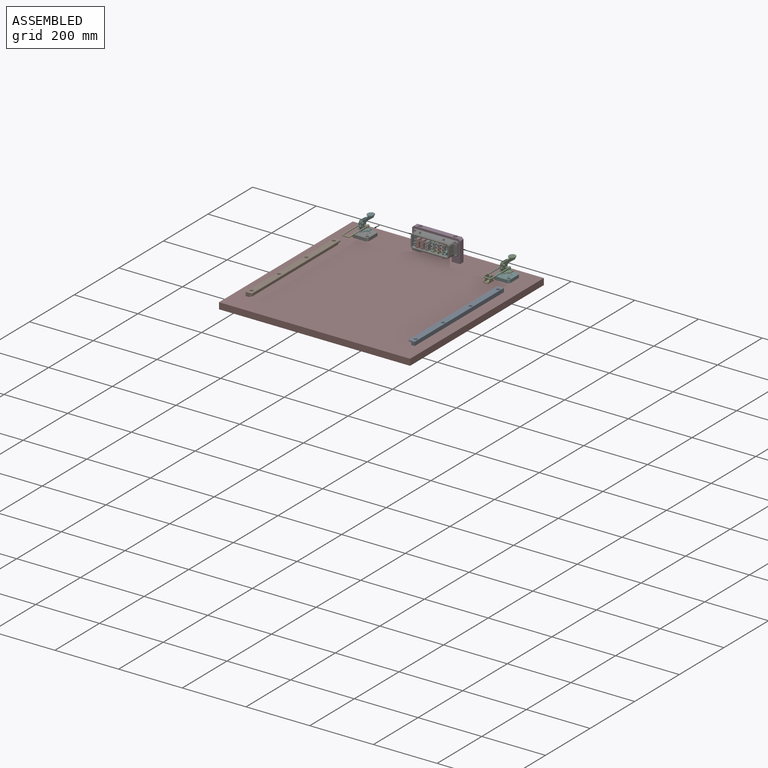
[diagram: assembled view]
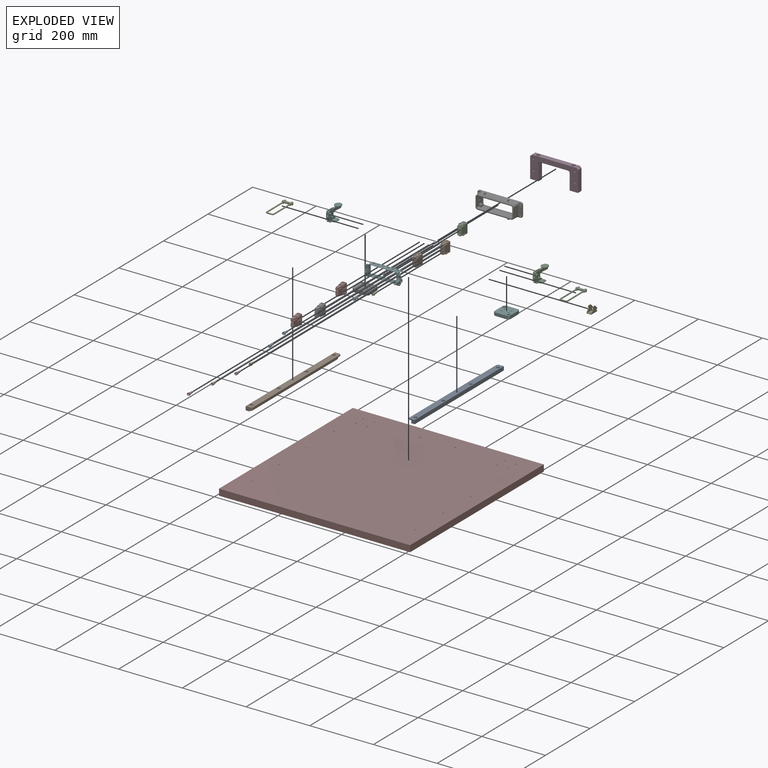
[diagram: exploded view]
GUIDED TOUR — MATED ASSEMBLY (Onshape document d4c35ae18ba1addbceedd93a, AutoMate assembly d4c35ae18ba1addbceedd93a_c596f7dea97372842537b437_43eada3d52e0381e4ba08f61_default)

This assembly has 27 components, labeled P0..P26 below (a component is one placed occurrence of a part; the same part can appear more than once), held together by 24 mates. A mate is a constraint between two components; its type names the relative motion it leaves free:
  FASTENED — locks the two components together rigidly (no relative motion),
  REVOLUTE — leaves rotation about the listed axis free (a hinge).
Axis/direction vectors are unit vectors and 'through' points are millimeter coordinates, both in the assembly's world frame.

MATES
  1. FASTENED "Fastened 5": P21 <-> P6, direction (0.000, 1.000, 0.000) through (-226.00, 317.46, 228.51) mm
  2. FASTENED "Fastened 7": P5 <-> P7, direction (0.000, 0.000, -1.000) through (-38.00, 317.81, 200.51) mm
  3. FASTENED "Fastened 14": P1 <-> P9, direction (0.000, 1.000, 0.000) through (-255.84, 311.16, 241.67) mm
  4. FASTENED "Fastened 4": P6 <-> P19, direction (0.000, 1.000, 0.000) through (-213.00, 334.81, 226.01) mm
  5. FASTENED "Fastened 23": P21 <-> P15, direction (0.000, -1.000, 0.000) through (-314.85, 332.76, 225.54) mm
  6. FASTENED "Fastened 12": P10 <-> P17, direction (0.000, 1.000, 0.000) through (-240.94, 311.16, 232.93) mm
  7. FASTENED "Fastened 6": P14 <-> P7, direction (0.000, 0.000, -1.000) through (-482.00, 317.81, 200.51) mm
  8. FASTENED "Fastened 13": P20 <-> P9, direction (0.000, 1.000, 0.000) through (-255.84, 311.16, 232.17) mm
  9. FASTENED "Fastened 2": P16 <-> P7, direction (0.000, 0.000, 1.000) through (-20.25, 244.81, 200.51) mm
  10. FASTENED "Fastened 24": P18 <-> P4, direction (-1.000, 0.000, 0.000) through (-49.20, 246.78, 234.51) mm
  11. FASTENED "Fastened 22": P21 <-> P23, direction (0.000, -1.000, 0.000) through (-300.15, 332.76, 225.54) mm
  12. FASTENED "Fastened 20": P21 <-> P26, direction (0.000, -1.000, 0.000) through (-270.54, 332.76, 225.54) mm
  13. FASTENED "Fastened 10": P0 <-> P17, direction (0.000, 1.000, 0.000) through (-240.94, 311.16, 251.93) mm
  14. FASTENED "Fastened 19": P21 <-> P9, direction (0.000, -1.000, 0.000) through (-255.84, 332.76, 225.54) mm
  15. FASTENED "Fastened 17": P11 <-> P26, direction (0.000, 1.000, 0.000) through (-270.54, 311.16, 241.67) mm
  16. FASTENED "Fastened 1": P25 <-> P7, direction (0.000, 0.000, 1.000) through (-535.75, 244.81, 200.51) mm
  17. FASTENED "Fastened 18": P21 <-> P17, direction (0.000, -1.000, 0.000) through (-240.94, 332.76, 226.31) mm
  18. FASTENED "Fastened 15": P24 <-> P9, direction (0.000, 1.000, 0.000) through (-255.84, 311.16, 251.17) mm
  19. FASTENED "Fastened 21": P21 <-> P22, direction (0.000, -1.000, 0.000) through (-285.45, 332.76, 225.54) mm
  20. FASTENED "Fastened 11": P3 <-> P17, direction (0.000, 1.000, 0.000) through (-240.94, 311.16, 242.43) mm
  21. FASTENED "Fastened 3": P19 <-> P7, direction (0.000, 0.000, -1.000) through (-333.00, 342.81, 200.51) mm
  22. REVOLUTE "Revolute 2": P18 <-> P2, axis (1.000, 0.000, 0.000) through (-56.20, 327.28, 234.51) mm
  23. FASTENED "Fastened 16": P8 <-> P26, direction (0.000, 1.000, 0.000) through (-270.54, 311.16, 251.17) mm
  24. REVOLUTE "Revolute 1": P12 <-> P13, axis (-1.000, 0.000, 0.000) through (-516.10, 327.28, 234.51) mm

ASSEMBLY ORDER
  1. P17 — the base component [order verified]
  2. P9 [order verified]
  3. P26 [order verified]
  4. P21 [order verified]
  5. P10 [order verified]
  6. P6 [order verified]
  7. P0 [order verified]
  8. P15 [order verified]
  9. P22 [order verified]
  10. P23 [order verified]
  11. P2 [order verified]
  12. P18 [order verified]
  13. P8 [order verified]
  14. P24 [order verified]
  15. P20 [order verified]
  16. P13 [order verified]
  17. P12 [order verified]
  18. P3 [order verified]
  19. P1 [order verified]
  20. P11 [order verified]
  21. P19 [order verified]
  22. P4 [order verified]
  23. P14 [order verified]
  24. P5 [order verified]
  25. P16 [order verified]
  26. P25 [order verified]
  27. P7 [order verified]
(P0, P1, P3, P8, P10, P18, P20, P21, P24, P26 verified with a relaxed clearance tolerance: the source model stores slight part interference there.)
Order-tag legend:
  [order verified] — this step's position reverses a verified removal order: the component was checked to insert without passing through the ones already placed.

Of the 27 components, 6 carry the full construction recipe — the FeatureScript program that regenerates the part's solid from scratch; the rest are supplied as boundary geometry only.
Because this assembly has more than 12 components, the tour below covers the 12 most significant ones individually (every recipe-attached component first, then the largest by part volume), in assembly order; the remaining 15 are summarized together in a grouped section at the end.
Each toured component is shown spotlighted twice — in the assembled view, then in the exploded view, where a leader line traces a displaced component back to its assembled socket (saturated green if recipe-attached, orange if geometry-only; every other component desaturated gray) — followed by its recipe or geometry summary and the mates that hold it.
NOTE — document 2 of 2 of this assembly tour. The two overview renders and the header above are repeated from document 1; the component sections below continue where the previous document stopped.
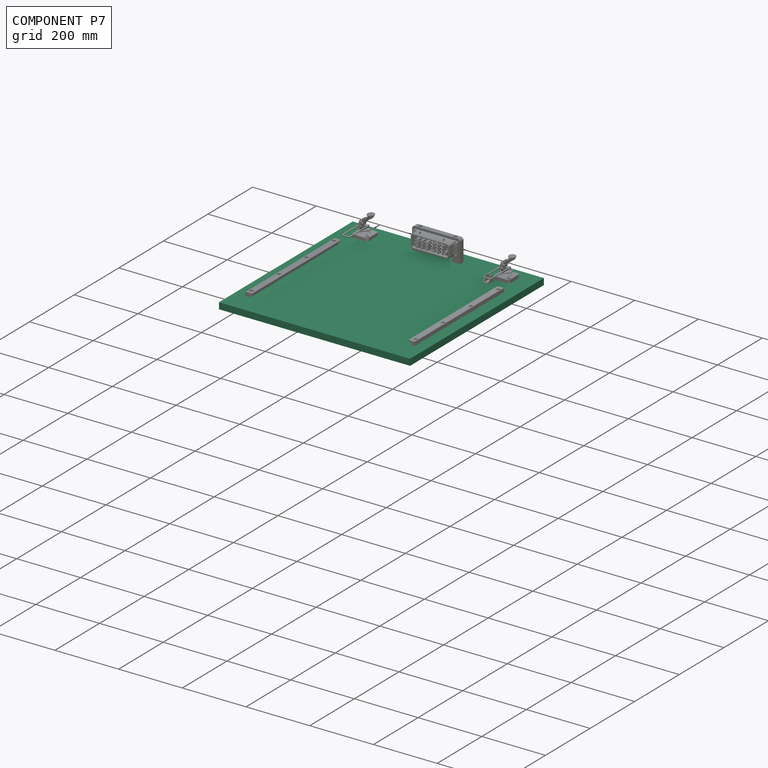
[diagram: component P7 — assembled]
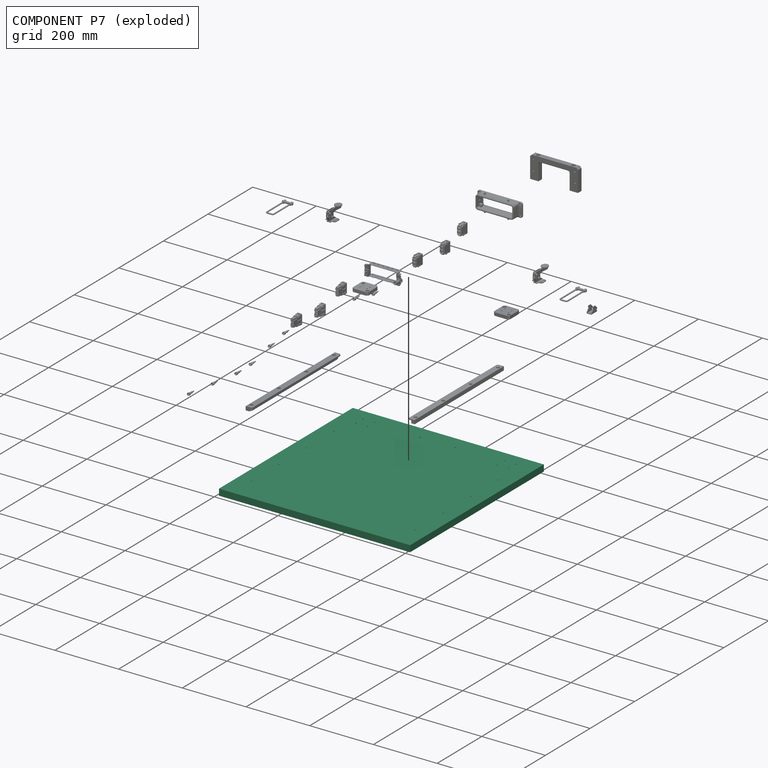
[diagram: component P7 — exploded]
COMPONENT P7 — recipe-attached (CADFS 00426690, mesh-verified: the recipe's output STEP matches this component's geometry to below the mesh-comparison resolution (tessellation chordal tolerance ~1.27 mm)).
Held by: FASTENED mate "Fastened 7" to P5; FASTENED mate "Fastened 6" to P14; FASTENED mate "Fastened 2" to P16; FASTENED mate "Fastened 1" to P25; FASTENED mate "Fastened 3" to P19.
Construction recipe (FeatureScript — the CAD program that rebuilds this solid; sketch coordinates are in the units given by the * unit suffixes, e.g. mm):

FeatureScript 1511;
import(path : "onshape/std/geometry.fs", version : "1511.0");
import(path : "onshape/std/common.fs", version : "1511.0");
const mm = millimeter;
const VERTEX = EntityType.VERTEX;
const EDGE = EntityType.EDGE;
const FACE = EntityType.FACE;
const BODY = EntityType.BODY;
function v(x, y){return vector(x, y);}
function OD(order){return orderDisambiguation(order);}
function OSD(set){return originalSetDisambiguation(set);}
function TD(topology){return topologyDisambiguation(topology);}
function TDD(query){return trueDependencyDisambiguation(query);}
function sQuery(a, b, c) {return sketchEntityQuery(a, b, c);}

annotation { "Feature Type Name" : "Feature", "Feature Type Description" : "" }
export const myFeature = defineFeature(function(context is Context, id is Id, definition is map)
    precondition{}
    {
        {
            var Q0;
            Q0=qCreatedBy(makeId("Top.planeOp"),FACE);
            var sketch = newSketch(context, id + "F0", { "sketchPlane" : qUnion([Q0])});
            skLineSegment(sketch, "E0.bottom", {"start": v(-722.9, 558) * mm, "end": v(-122.9, 558) * mm});
            skLineSegment(sketch, "E0.top", {"start": v(-722.9, -42) * mm, "end": v(-122.9, -42) * mm});
            skLineSegment(sketch, "E0.left", {"start": v(-722.9, 558) * mm, "end": v(-722.9, -42) * mm});
            skLineSegment(sketch, "E0.right", {"start": v(-122.9, 558) * mm, "end": v(-122.9, -42) * mm});
            skLineSegment(sketch, "E1.0", {"start": v(-422.9, 521) * mm, "end": v(-422.9, -42) * mm});
            skPoint(sketch, "E2", {"position": v(-477.9, 511) * mm});
            skPoint(sketch, "E3", {"position": v(-367.9, 511) * mm});
            skPoint(sketch, "E4", {"position": v(-680.64, 413) * mm});
            skPoint(sketch, "E5", {"position": v(-680.64, 289.7) * mm});
            skPoint(sketch, "E6", {"position": v(-680.64, 166.4) * mm});
            skPoint(sketch, "E7", {"position": v(-680.64, 43.1) * mm});
            skPoint(sketch, "E8", {"position": v(-165.14, 413) * mm});
            skPoint(sketch, "E9", {"position": v(-165.14, 289.7) * mm});
            skPoint(sketch, "E10", {"position": v(-165.14, 166.4) * mm});
            skPoint(sketch, "E11", {"position": v(-165.14, 43.1) * mm});
            skPoint(sketch, "E12", {"position": v(-662.9, 518) * mm});
            skPoint(sketch, "E13", {"position": v(-626.9, 518) * mm});
            skPoint(sketch, "E14", {"position": v(-626.9, 486) * mm});
            skPoint(sketch, "E15", {"position": v(-662.9, 486) * mm});
            skPoint(sketch, "E16", {"position": v(-218.9, 518) * mm});
            skPoint(sketch, "E17", {"position": v(-182.9, 518) * mm});
            skPoint(sketch, "E18", {"position": v(-182.9, 486) * mm});
            skPoint(sketch, "E19", {"position": v(-218.9, 486) * mm});
            skSolve(sketch);
        }
        {
            var Q0;
            {var subQ0=sQuery(id+"F0.wireOp",EDGE,"E0.left");Q0=makeQuery(id+"F0.imprint","IMPRINT",FACE,{"disambiguationData":[TD([[makeQuery(id+"F0.imprint","IMPRINT",EDGE,{"derivedFrom":subQ0}),1.0]])]});}
            var Q1;
            {var subQ0=sQuery(id+"F0.wireOp",EDGE,"E0.right");Q1=makeQuery(id+"F0.imprint","IMPRINT",FACE,{"disambiguationData":[TD([[makeQuery(id+"F0.imprint","IMPRINT",EDGE,{"derivedFrom":subQ0}),-1.0]])]});}
            extrude(context, id + "F1", {"entities" : qUnion([Q0, Q1]), "depth" : 20 * mm});
        }
        {
            var Q0;
            Q0=sQuery(id+"F0.wireOp",VERTEX,"E2");
            var Q1;
            Q1=sQuery(id+"F0.wireOp",VERTEX,"E3");
            var Q2;
            Q2=makeQuery(id+"F1.opExtrude","SWEPT_BODY",BODY,{"disambiguationData":[OSD([sQuery(id+"F0.wireOp",EDGE,"E0.bottom"),sQuery(id+"F0.wireOp",EDGE,"E0.top"),sQuery(id+"F0.wireOp",EDGE,"E0.left"),sQuery(id+"F0.wireOp",EDGE,"E0.right")])]});
            hole(context, id + "F2", {"style" : HoleStyle.SIMPLE, "endStyle" : HoleEndStyle.THROUGH, "oppositeDirection" : true, "standardTappedOrClearance" : lookupTablePath({ "standard" : "ISO", "engagement" : "75%", "pitch" : "1 mm", "size" : "M6", "type" : "Tapped" }), "standardBlindInLast" : lookupTablePath({ "standard" : "ISO", "engagement" : "75%", "pitch" : "1 mm", "size" : "M6", "type" : "Tapped" }), "holeDiameter" : 5 * mm, "showTappedDepth" : true, "isTappedThrough" : true, "tappedDepth" : 10 * mm, "tapClearance" : 3, "locations" : qUnion([Q0, Q1]), "scope" : qUnion([Q2]), "majorDiameter" : 6 * mm});
        }
        {
            var Q0;
            Q0=sQuery(id+"F0.wireOp",VERTEX,"E4");
            var Q1;
            Q1=sQuery(id+"F0.wireOp",VERTEX,"E5");
            var Q2;
            Q2=sQuery(id+"F0.wireOp",VERTEX,"E6");
            var Q3;
            Q3=sQuery(id+"F0.wireOp",VERTEX,"E7");
            var Q4;
            Q4=sQuery(id+"F0.wireOp",VERTEX,"E11");
            var Q5;
            Q5=sQuery(id+"F0.wireOp",VERTEX,"E10");
            var Q6;
            Q6=sQuery(id+"F0.wireOp",VERTEX,"E9");
            var Q7;
            Q7=sQuery(id+"F0.wireOp",VERTEX,"E8");
            var Q8;
            Q8=makeQuery(id+"F1.opExtrude","SWEPT_BODY",BODY,{"disambiguationData":[OSD([sQuery(id+"F0.wireOp",EDGE,"E0.bottom"),sQuery(id+"F0.wireOp",EDGE,"E0.top"),sQuery(id+"F0.wireOp",EDGE,"E0.left"),sQuery(id+"F0.wireOp",EDGE,"E0.right")])]});
            hole(context, id + "F3", {"style" : HoleStyle.SIMPLE, "endStyle" : HoleEndStyle.THROUGH, "oppositeDirection" : true, "standardTappedOrClearance" : lookupTablePath({ "standard" : "ISO", "engagement" : "75%", "pitch" : "0.8 mm", "size" : "M5", "type" : "Tapped" }), "standardBlindInLast" : lookupTablePath({ "standard" : "ISO", "engagement" : "75%", "pitch" : "0.8 mm", "size" : "M5", "type" : "Tapped" }), "holeDiameter" : 4.2 * mm, "showTappedDepth" : true, "isTappedThrough" : true, "tappedDepth" : 10 * mm, "tapClearance" : 3, "locations" : qUnion([Q0, Q1, Q2, Q3, Q4, Q5, Q6, Q7]), "scope" : qUnion([Q8]), "majorDiameter" : 5 * mm});
        }
        {
            var Q0;
            Q0=sQuery(id+"F0.wireOp",VERTEX,"E14");
            var Q1;
            Q1=sQuery(id+"F0.wireOp",VERTEX,"E15");
            var Q2;
            Q2=sQuery(id+"F0.wireOp",VERTEX,"E12");
            var Q3;
            Q3=sQuery(id+"F0.wireOp",VERTEX,"E13");
            var Q4;
            Q4=sQuery(id+"F0.wireOp",VERTEX,"E16");
            var Q5;
            Q5=sQuery(id+"F0.wireOp",VERTEX,"E17");
            var Q6;
            Q6=sQuery(id+"F0.wireOp",VERTEX,"E18");
            var Q7;
            Q7=sQuery(id+"F0.wireOp",VERTEX,"E19");
            var Q8;
            Q8=makeQuery(id+"F1.opExtrude","SWEPT_BODY",BODY,{"disambiguationData":[OSD([sQuery(id+"F0.wireOp",EDGE,"E0.bottom"),sQuery(id+"F0.wireOp",EDGE,"E0.top"),sQuery(id+"F0.wireOp",EDGE,"E0.left"),sQuery(id+"F0.wireOp",EDGE,"E0.right")])]});
            hole(context, id + "F4", {"style" : HoleStyle.SIMPLE, "endStyle" : HoleEndStyle.THROUGH, "oppositeDirection" : true, "standardTappedOrClearance" : lookupTablePath({ "standard" : "ISO", "engagement" : "75%", "pitch" : "0.8 mm", "size" : "M5", "type" : "Tapped" }), "standardBlindInLast" : lookupTablePath({ "standard" : "ISO", "engagement" : "75%", "pitch" : "0.8 mm", "size" : "M5", "type" : "Tapped" }), "holeDiameter" : 4.2 * mm, "showTappedDepth" : true, "isTappedThrough" : true, "tappedDepth" : 10 * mm, "tapClearance" : 3, "locations" : qUnion([Q0, Q1, Q2, Q3, Q4, Q5, Q6, Q7]), "scope" : qUnion([Q8]), "majorDiameter" : 5 * mm});
        }
    });
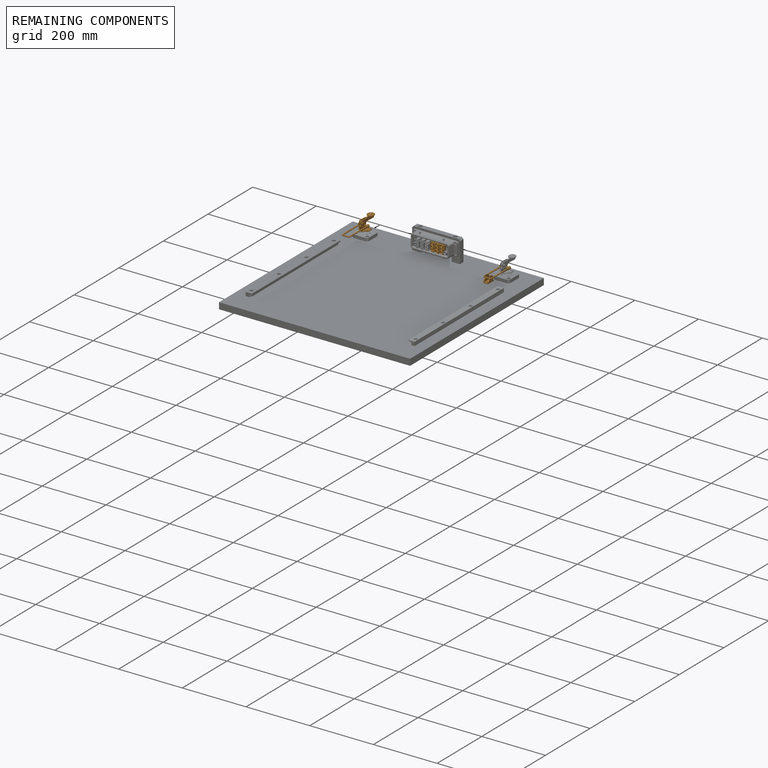
[diagram: remaining components — assembled]
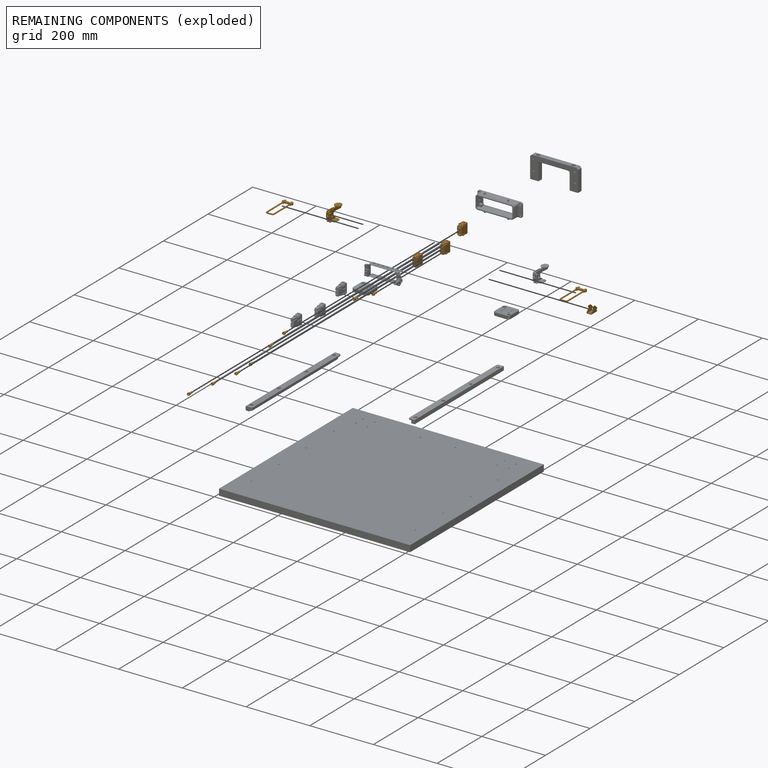
[diagram: remaining components — exploded]
REMAINING COMPONENTS (grouped) — the 15 components below fall outside the per-component tour by the significance rule stated above; both spotlight views highlight the whole group.
  P17: bounding box 34.2 x 27.2 x 14.6 mm, volume 5093 mm^3. Held by: FASTENED mate "Fastened 12" to P10; FASTENED mate "Fastened 10" to P0; FASTENED mate "Fastened 18" to P21; FASTENED mate "Fastened 11" to P3.
  P9: bounding box 34.2 x 27.2 x 14.6 mm, volume 5093 mm^3. Held by: FASTENED mate "Fastened 14" to P1; FASTENED mate "Fastened 13" to P20; FASTENED mate "Fastened 19" to P21; FASTENED mate "Fastened 15" to P24.
  P26: bounding box 34.2 x 27.2 x 14.6 mm, volume 5093 mm^3. Held by: FASTENED mate "Fastened 20" to P21; FASTENED mate "Fastened 17" to P11; FASTENED mate "Fastened 16" to P8.
  P10: bounding box 25.5 x 8.9 x 8.9 mm, volume 322 mm^3. Held by: FASTENED mate "Fastened 12" to P17.
  P0: bounding box 25.5 x 8.9 x 8.9 mm, volume 322 mm^3. Held by: FASTENED mate "Fastened 10" to P17.
  P18: bounding box 91.5 x 32.0 x 8.1 mm, volume 3813 mm^3. Held by: FASTENED mate "Fastened 24" to P4; REVOLUTE mate "Revolute 2" to P2.
  P8: bounding box 25.5 x 8.9 x 8.9 mm, volume 322 mm^3. Held by: FASTENED mate "Fastened 16" to P26.
  P24: bounding box 25.5 x 8.9 x 8.9 mm, volume 322 mm^3. Held by: FASTENED mate "Fastened 15" to P9.
  P20: bounding box 25.5 x 8.9 x 8.9 mm, volume 322 mm^3. Held by: FASTENED mate "Fastened 13" to P9.
  P13: bounding box 61.5 x 34.2 x 32.0 mm, volume 6816 mm^3. Held by: REVOLUTE mate "Revolute 1" to P12.
  P12: bounding box 91.5 x 32.0 x 8.1 mm, volume 3813 mm^3. Held by: REVOLUTE mate "Revolute 1" to P13.
  P3: bounding box 25.5 x 8.9 x 8.9 mm, volume 322 mm^3. Held by: FASTENED mate "Fastened 11" to P17.
  P1: bounding box 25.5 x 8.9 x 8.9 mm, volume 322 mm^3. Held by: FASTENED mate "Fastened 14" to P9.
  P11: bounding box 25.5 x 8.9 x 8.9 mm, volume 322 mm^3. Held by: FASTENED mate "Fastened 17" to P26.
  P4: bounding box 25.0 x 20.0 x 16.0 mm, volume 1917 mm^3. Held by: FASTENED mate "Fastened 24" to P18.
PROVENANCE & LICENSES
Assembly (occurrences, transforms, mates, per-part STEP geometry): AutoMate dataset, Zenodo record 7776208, CC0.
Construction recipes: CADFS (HuggingFace VladPyatov/CADFS, CC-BY-4.0, layered over the ABC dataset), FeatureScript reconstruction programs keyed by ABC model id.
Join: ABC meta listings map ABC model id -> Onshape documentId; within a shared document, parts are matched by geometric signature (bounding-box dims + volume at 0.1% relative tolerance, exact B-rep face/solid counts).
Verification: 6 of this assembly's 27 components carry a recipe attachment, and every attachment is mesh-verified: the CADFS STEP and the AutoMate member STEP were compared as meshes in their shared local frame (symmetric sampled-point-to-mesh distance); worst across the 6 attachments: below the mesh-comparison resolution (tessellation chordal tolerance ~1.27 mm) on a 849 mm part.
Renders: orthographic iso camera (az 35 / el 25); the floor grid conveys scale (grid pitch printed in each image; no ruler). In the exploded view each component is displaced by its stored offset vector: the offsets alone carry the explosion direction (mate normal/axis signs are not orientation cues and do not encode it), and separation distances are assigned per mate-chain, not proportionally to assembly-order depth.
